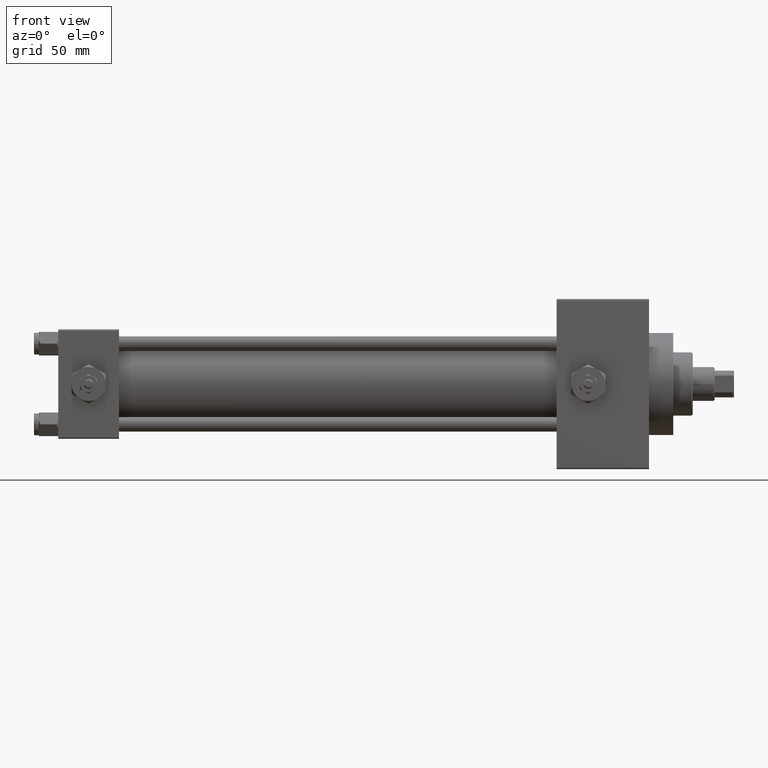
[diagram: clean part render]
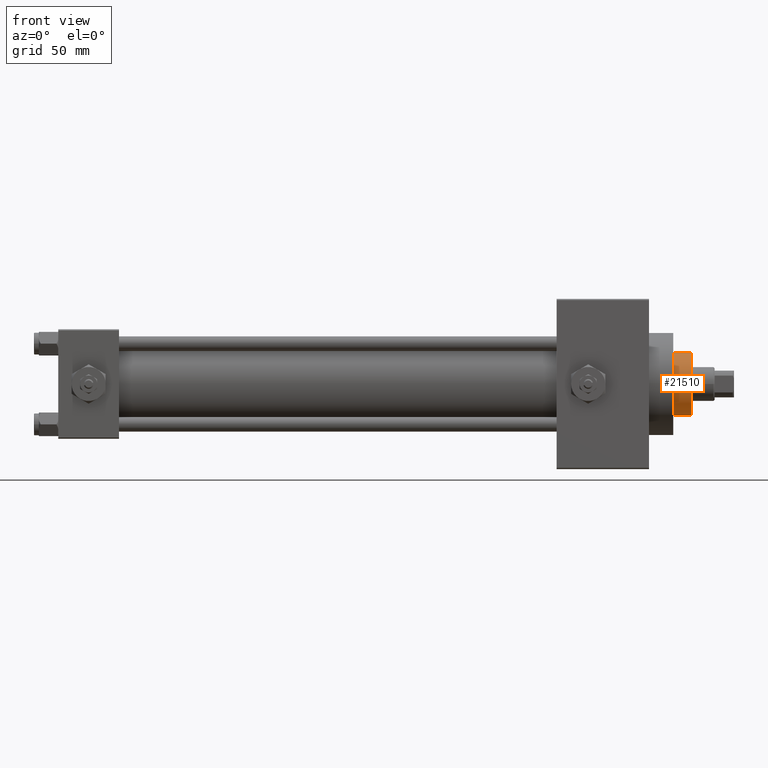
[diagram: same view with one face highlighted and labeled with its STEP entity id]
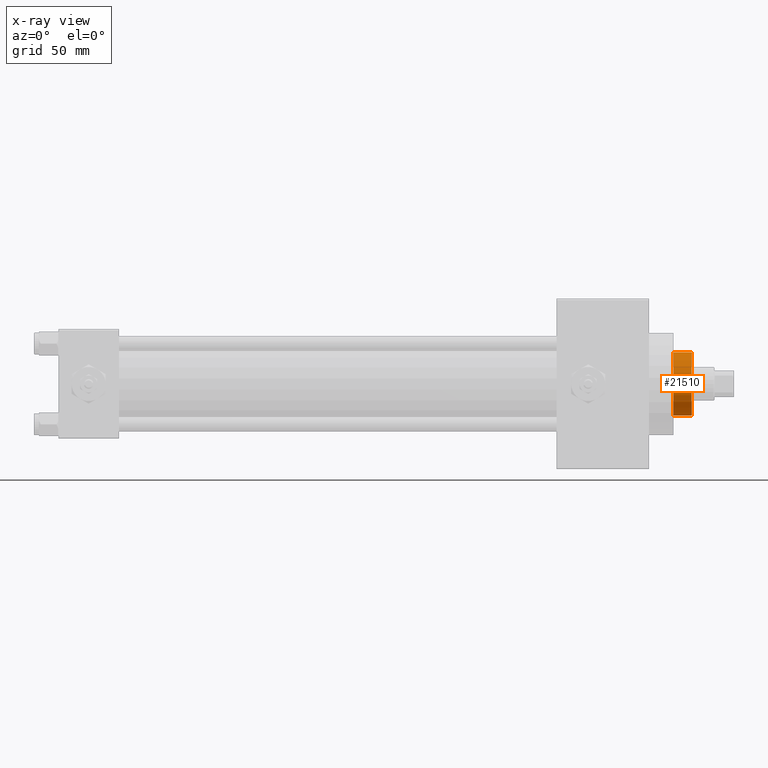
[diagram: x-ray of the same camera — body ghosted, the highlighted face saturated]
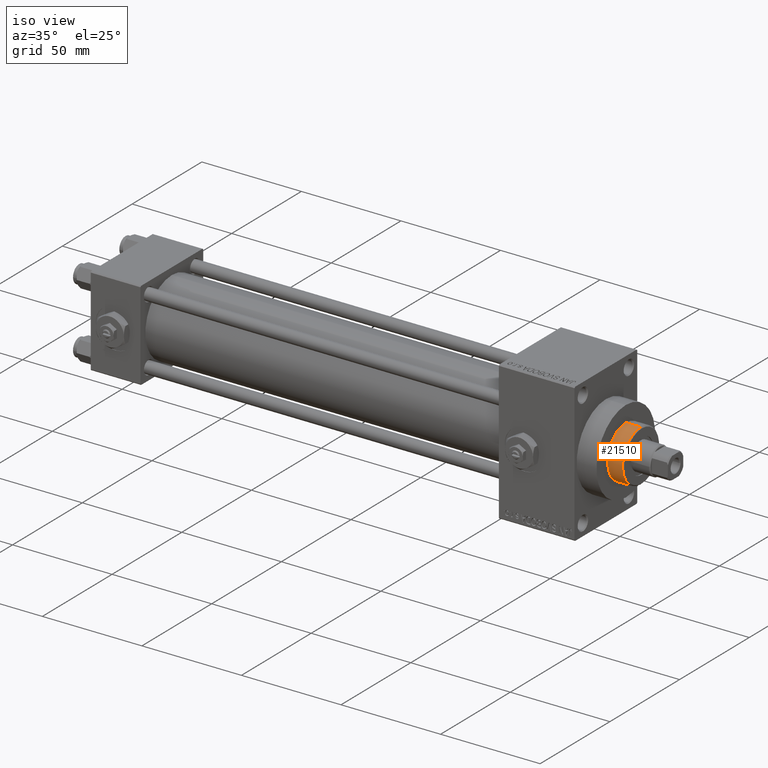
[diagram: same view with one face highlighted and labeled with its STEP entity id]
A machine part, front view. The second image highlights one B-rep face of the part: STEP entity #21510.
The next image is the same camera in x-ray: the body ghosted, the highlighted face saturated — about 0% of this face is hidden behind the body in this view.
A second angle (iso view) of the same face is appended — the face is thin or edge-on in the first view.
In plain terms, the highlighted cylindrical surface (edge-blend (fillet) strip) has radius 13 mm, axis along (-1, 0, 0).
Its self-contained STEP definition (entity closure, byte-faithful):
#6763 = DIRECTION ( 'NONE',  ( 0.000000000000000000, 0.000000000000000000, 1.000000000000000000 ) ) ;
#8209 = ORIENTED_EDGE ( 'NONE', *, *, #44467, .T. ) ;
#8412 = CARTESIAN_POINT ( 'NONE',  ( 13.00000000000000178, 1.592040838891559293E-15, 50.75999999999997669 ) ) ;
#8700 = DIRECTION ( 'NONE',  ( -0.000000000000000000, -0.000000000000000000, -1.000000000000000000 ) ) ;
#9243 = CARTESIAN_POINT ( 'NONE',  ( -13.00000000000000178, 0.000000000000000000, 51.25999999999999801 ) ) ;
#9276 = EDGE_CURVE ( 'NONE', #27666, #39549, #46965, .T. ) ;
#10520 = CARTESIAN_POINT ( 'NONE',  ( 13.00000000000000178, 1.592040838891559293E-15, 43.25999999999999801 ) ) ;
#12432 = CYLINDRICAL_SURFACE ( 'NONE', #23984, 13.00000000000000178 ) ;
#14825 = EDGE_LOOP ( 'NONE', ( #8209, #44760, #49085, #42899 ) ) ;
#16192 = CARTESIAN_POINT ( 'NONE',  ( -13.00000000000000178, 0.000000000000000000, 43.25999999999999801 ) ) ;
#19435 = CARTESIAN_POINT ( 'NONE',  ( -13.00000000000000178, 0.000000000000000000, 50.75999999999997669 ) ) ;
#20728 = CARTESIAN_POINT ( 'NONE',  ( 0.000000000000000000, 0.000000000000000000, 50.75999999999997669 ) ) ;
#20845 = DIRECTION ( 'NONE',  ( -1.000000000000000000, 0.000000000000000000, 0.000000000000000000 ) ) ;
#21510 = ADVANCED_FACE ( 'NONE', ( #31298 ), #12432, .T. ) ;
#23984 = AXIS2_PLACEMENT_3D ( 'NONE', #28047, #8700, #20845 ) ;
#24390 = DIRECTION ( 'NONE',  ( -0.000000000000000000, -0.000000000000000000, -1.000000000000000000 ) ) ;
#27457 = CIRCLE ( 'NONE', #39314, 13.00000000000000178 ) ;
#27666 = VERTEX_POINT ( 'NONE', #8412 ) ;
#28047 = CARTESIAN_POINT ( 'NONE',  ( 0.000000000000000000, 0.000000000000000000, 51.25999999999999801 ) ) ;
#31298 = FACE_OUTER_BOUND ( 'NONE', #14825, .T. ) ;
#33307 = EDGE_CURVE ( 'NONE', #40528, #48233, #42748, .T. ) ;
#33808 = CARTESIAN_POINT ( 'NONE',  ( 0.000000000000000000, 0.000000000000000000, 43.25999999999999801 ) ) ;
#36858 = DIRECTION ( 'NONE',  ( 1.000000000000000000, 0.000000000000000000, 0.000000000000000000 ) ) ;
#38619 = CIRCLE ( 'NONE', #48930, 13.00000000000000178 ) ;
#39314 = AXIS2_PLACEMENT_3D ( 'NONE', #33808, #6763, #48692 ) ;
#39549 = VERTEX_POINT ( 'NONE', #10520 ) ;
#40528 = VERTEX_POINT ( 'NONE', #19435 ) ;
#40565 = DIRECTION ( 'NONE',  ( 0.000000000000000000, 0.000000000000000000, -1.000000000000000000 ) ) ;
#41099 = VECTOR ( 'NONE', #43244, 1000.000000000000000 ) ;
#42051 = EDGE_CURVE ( 'NONE', #39549, #48233, #27457, .T. ) ;
#42748 = LINE ( 'NONE', #9243, #48646 ) ;
#42899 = ORIENTED_EDGE ( 'NONE', *, *, #33307, .F. ) ;
#43244 = DIRECTION ( 'NONE',  ( -0.000000000000000000, -0.000000000000000000, -1.000000000000000000 ) ) ;
#43998 = CARTESIAN_POINT ( 'NONE',  ( 13.00000000000000178, 1.592040838891559293E-15, 51.25999999999999801 ) ) ;
#44467 = EDGE_CURVE ( 'NONE', #40528, #27666, #38619, .T. ) ;
#44760 = ORIENTED_EDGE ( 'NONE', *, *, #9276, .T. ) ;
#46965 = LINE ( 'NONE', #43998, #41099 ) ;
#48233 = VERTEX_POINT ( 'NONE', #16192 ) ;
#48646 = VECTOR ( 'NONE', #24390, 1000.000000000000000 ) ;
#48692 = DIRECTION ( 'NONE',  ( 1.000000000000000000, 0.000000000000000000, 0.000000000000000000 ) ) ;
#48930 = AXIS2_PLACEMENT_3D ( 'NONE', #20728, #40565, #36858 ) ;
#49085 = ORIENTED_EDGE ( 'NONE', *, *, #42051, .T. ) ;